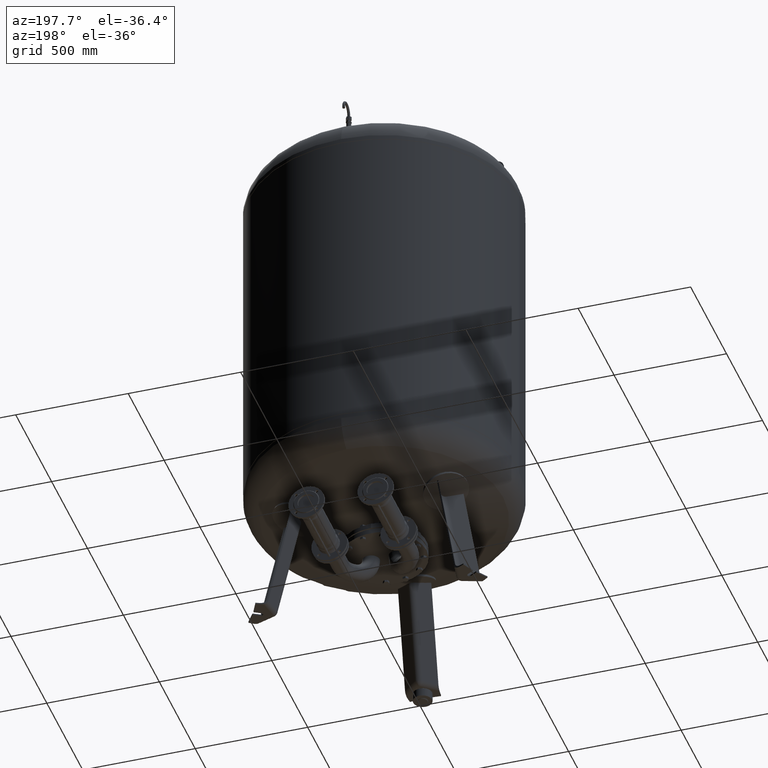
[diagram: clean part render]
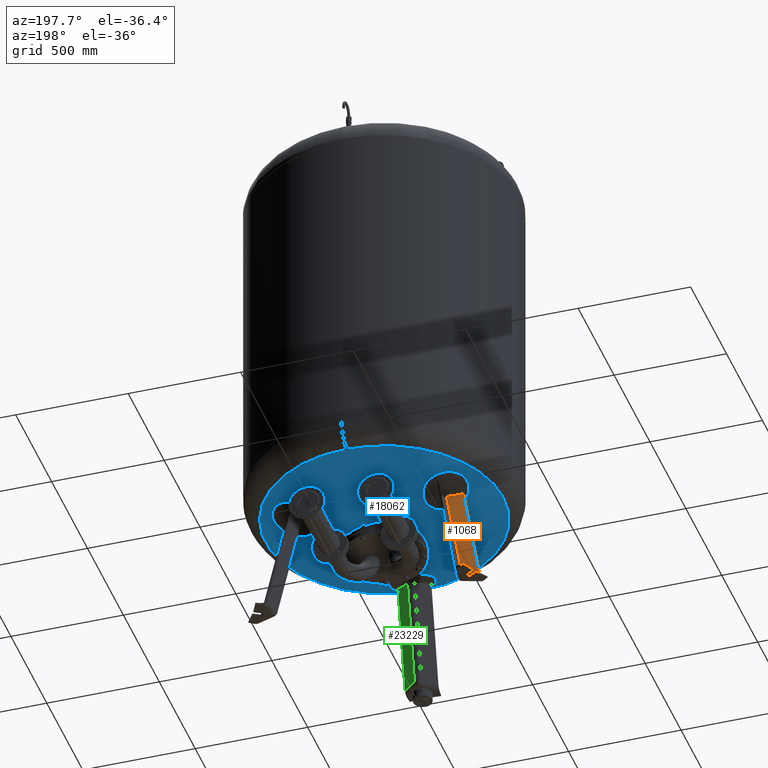
[diagram: same view with three faces highlighted in distinct colors, each labeled with its STEP entity id]
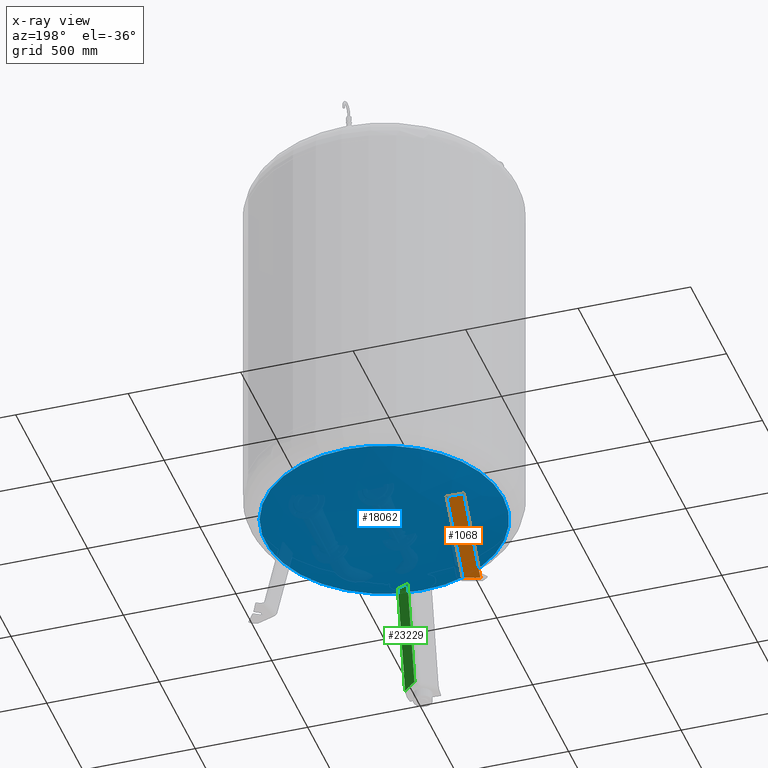
[diagram: x-ray of the same camera — body ghosted, the three highlighted faces saturated]
A machine part, auxiliary view with three faces highlighted in distinct colors.
The next image is the same camera in x-ray (body ghosted, the three faces saturated) — at least one of them is partly hidden behind the body in this view.
Their STEP definitions:

[orange] entity #1068 — the highlighted planar face has unit normal (-0.3243, 0.9325, 0.1588).
#512=CARTESIAN_POINT('',(-420.404321888330290,224.087779953756810,27.029948423057284));
#513=VERTEX_POINT('',#512);
#522=CARTESIAN_POINT('',(-491.178961512120280,199.476382368576110,27.029948423057281));
#523=VERTEX_POINT('',#522);
#531=CARTESIAN_POINT('',(-491.178961512120280,199.476382368576110,27.029948423057281));
#532=DIRECTION('',(0.944521094592692,0.328450760190052,4.741265E-017));
#533=VECTOR('',#532,74.931772333057651);
#534=LINE('',#531,#533);
#535=EDGE_CURVE('',#523,#513,#534,.T.);
#851=CARTESIAN_POINT('',(-331.808702377670270,172.937075180255530,508.320240019970470));
#852=VERTEX_POINT('',#851);
#882=CARTESIAN_POINT('',(-399.179928245355650,146.360715746824160,526.809077370483350));
#883=VERTEX_POINT('',#882);
#884=CARTESIAN_POINT('',(-77.536866522000253,96.546967477290849,1476.144501634031000));
#885=DIRECTION('',(0.324282864533177,-0.932535537409927,-0.158802063077709));
#886=DIRECTION('',(0.180056805991956,-0.103955845408880,0.978147600733805));
#887=AXIS2_PLACEMENT_3D('',#884,#885,#886);
#888=CIRCLE('',#887,1003.580298946269700);
#889=EDGE_CURVE('',#883,#852,#888,.T.);
#1043=CARTESIAN_POINT('',(-420.404321888330290,224.087779953756810,27.029948423057284));
#1044=DIRECTION('',(0.180056805991956,-0.103955845408880,0.978147600733806));
#1045=VECTOR('',#1044,492.042603013951630);
#1046=LINE('',#1043,#1045);
#1047=EDGE_CURVE('',#513,#852,#1046,.T.);
#1052=CARTESIAN_POINT('',(-500.117346623909440,204.636961418988140,-21.527282742766886));
#1053=DIRECTION('',(-0.324282864533177,0.932535537409927,0.158802063077709));
#1054=DIRECTION('',(0.180056805991956,-0.103955845408880,0.978147600733806));
#1055=AXIS2_PLACEMENT_3D('',#1052,#1053,#1054);
#1056=PLANE('',#1055);
#1057=ORIENTED_EDGE('',*,*,#889,.T.);
#1058=ORIENTED_EDGE('',*,*,#1047,.F.);
#1059=ORIENTED_EDGE('',*,*,#535,.F.);
#1060=CARTESIAN_POINT('',(-491.178961512120280,199.476382368576110,27.029948423057281));
#1061=DIRECTION('',(0.180056805991956,-0.103955845408880,0.978147600733806));
#1062=VECTOR('',#1061,510.944491989237750);
#1063=LINE('',#1060,#1062);
#1064=EDGE_CURVE('',#523,#883,#1063,.T.);
#1065=ORIENTED_EDGE('',*,*,#1064,.T.);
#1066=EDGE_LOOP('',(#1057,#1058,#1059,#1065));
#1067=FACE_OUTER_BOUND('',#1066,.T.);
#1068=ADVANCED_FACE('',(#1067),#1056,.T.);

[blue] entity #18062 — the highlighted spherical surface has radius 1207 mm.
#18001=CARTESIAN_POINT('',(-5.387807E-014,-528.621296296296240,581.915429516194880));
#18002=VERTEX_POINT('',#18001);
#18018=CARTESIAN_POINT('',(-1.186134E-013,528.621296296296240,581.915429516195100));
#18019=VERTEX_POINT('',#18018);
#18027=CARTESIAN_POINT('',(-528.621296296296240,-2.239550E-014,581.915429516194990));
#18028=VERTEX_POINT('',#18027);
#18029=CARTESIAN_POINT('',(-1.834112E-014,-2.239550E-014,581.915429516194990));
#18030=DIRECTION('',(0.0,0.0,1.0));
#18031=DIRECTION('',(-1.0,0.0,0.0));
#18032=AXIS2_PLACEMENT_3D('',#18029,#18030,#18031);
#18033=CIRCLE('',#18032,528.621296296296240);
#18034=EDGE_CURVE('',#18019,#18028,#18033,.T.);
#18036=CARTESIAN_POINT('',(-1.834112E-014,-2.239550E-014,581.915429516194990));
#18037=DIRECTION('',(0.0,0.0,1.0));
#18038=DIRECTION('',(-1.0,0.0,0.0));
#18039=AXIS2_PLACEMENT_3D('',#18036,#18037,#18038);
#18040=CIRCLE('',#18039,528.621296296296240);
#18041=EDGE_CURVE('',#18028,#18002,#18040,.T.);
#18046=CARTESIAN_POINT('',(-2.715353E-013,-2.217223E-013,1667.0));
#18047=DIRECTION('',(0.0,-1.0,0.0));
#18048=DIRECTION('',(1.0,0.0,0.0));
#18049=AXIS2_PLACEMENT_3D('',#18046,#18047,#18048);
#18050=SPHERICAL_SURFACE('',#18049,1207.000000000000200);
#18051=ORIENTED_EDGE('',*,*,#18041,.F.);
#18052=ORIENTED_EDGE('',*,*,#18034,.F.);
#18053=CARTESIAN_POINT('',(-1.834112E-014,-2.239550E-014,581.915429516194990));
#18054=DIRECTION('',(0.0,0.0,1.0));
#18055=DIRECTION('',(-1.0,0.0,0.0));
#18056=AXIS2_PLACEMENT_3D('',#18053,#18054,#18055);
#18057=CIRCLE('',#18056,528.621296296296240);
#18058=EDGE_CURVE('',#18002,#18019,#18057,.T.);
#18059=ORIENTED_EDGE('',*,*,#18058,.F.);
#18060=EDGE_LOOP('',(#18051,#18052,#18059));
#18061=FACE_OUTER_BOUND('',#18060,.T.);
#18062=ADVANCED_FACE('',(#18061),#18050,.T.);

[green] entity #23229 — the highlighted planar face has unit normal (0.6455, 0.7471, -0.1588).
#22497=CARTESIAN_POINT('',(16.136450826554551,-469.470961811045530,63.029948423057277));
#22498=VERTEX_POINT('',#22497);
#22715=CARTESIAN_POINT('',(73.500000000000014,-519.029946471096990,63.029948423057284));
#22716=VERTEX_POINT('',#22715);
#22717=CARTESIAN_POINT('',(16.136450826554551,-469.470961811045530,63.029948423057277));
#22718=DIRECTION('',(0.756707249513243,-0.653753882232529,9.373075E-017));
#22719=VECTOR('',#22718,75.806792138366546);
#22720=LINE('',#22717,#22719);
#22721=EDGE_CURVE('',#22498,#22716,#22720,.T.);
#23031=CARTESIAN_POINT('',(16.136450826554654,-374.264158951643140,510.942739782579960));
#23032=VERTEX_POINT('',#23031);
#23033=CARTESIAN_POINT('',(73.500000000000114,-419.920615973365670,529.302688812935000));
#23034=VERTEX_POINT('',#23033);
#23035=CARTESIAN_POINT('',(-41.020088505273414,-118.861225454164180,1480.203780025492300));
#23036=DIRECTION('',(-0.645458033062182,-0.747104967402682,0.158802063077709));
#23037=DIRECTION('',(-5.092368E-017,-0.207911690817760,-0.978147600733805));
#23038=AXIS2_PLACEMENT_3D('',#23035,#23036,#23037);
#23039=CIRCLE('',#23038,1003.974348556914600);
#23040=EDGE_CURVE('',#23032,#23034,#23039,.T.);
#23195=CARTESIAN_POINT('',(16.136450826554654,-374.264158951643140,510.942739782579960));
#23196=DIRECTION('',(-2.249931E-016,-0.207911690817760,-0.978147600733805));
#23197=VECTOR('',#23196,457.919429566150200);
#23198=LINE('',#23195,#23197);
#23199=EDGE_CURVE('',#23032,#22498,#23198,.T.);
#23213=CARTESIAN_POINT('',(1.724896E-014,-472.440357983691800,-16.527282742766886));
#23214=DIRECTION('',(0.645458033062182,0.747104967402682,-0.158802063077709));
#23215=DIRECTION('',(-1.655020E-016,-0.207911690817760,-0.978147600733806));
#23216=AXIS2_PLACEMENT_3D('',#23213,#23214,#23215);
#23217=PLANE('',#23216);
#23218=CARTESIAN_POINT('',(73.500000000000014,-519.029946471096990,63.029948423057284));
#23219=DIRECTION('',(2.086809E-016,0.207911690817759,0.978147600733806));
#23220=VECTOR('',#23219,476.689550779534950);
#23221=LINE('',#23218,#23220);
#23222=EDGE_CURVE('',#22716,#23034,#23221,.T.);
#23223=ORIENTED_EDGE('',*,*,#23222,.F.);
#23224=ORIENTED_EDGE('',*,*,#22721,.F.);
#23225=ORIENTED_EDGE('',*,*,#23199,.F.);
#23226=ORIENTED_EDGE('',*,*,#23040,.T.);
#23227=EDGE_LOOP('',(#23223,#23224,#23225,#23226));
#23228=FACE_OUTER_BOUND('',#23227,.T.);
#23229=ADVANCED_FACE('',(#23228),#23217,.T.);